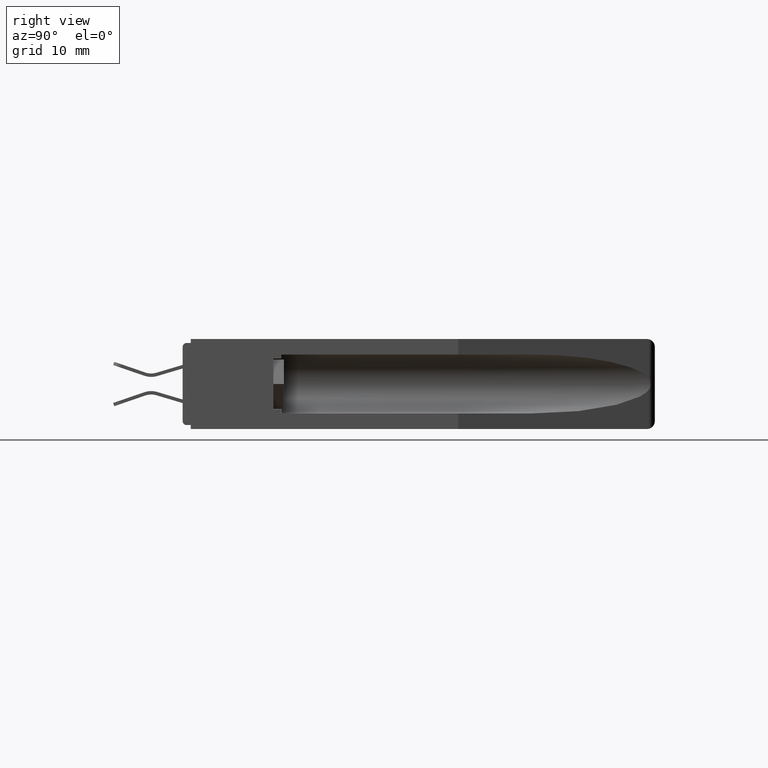
[diagram: clean part render]
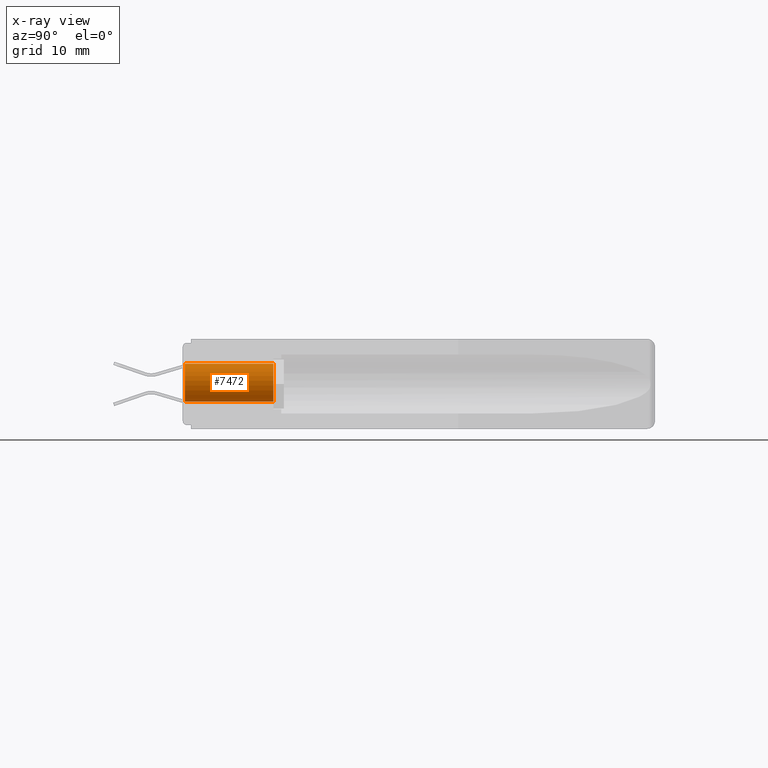
[diagram: x-ray — body ghosted, one internal face saturated and labeled with its STEP entity id]
A machine part, right view, then the same camera in x-ray: the body is ghosted and one INTERNAL B-rep face — a face not visible from any outside direction — is saturated and labeled: STEP entity #7472.
In plain terms, the highlighted cylindrical surface (edge-blend (fillet) strip) has radius 1.9685 mm, axis along (-0, 1, -0).
Its self-contained STEP definition (entity closure, byte-faithful):
#331 = CARTESIAN_POINT ( 'NONE',  ( 9.491012693391969400E-018, 0.3780000000000000600, 0.07749999999999999900 ) ) ;
#393 = DIRECTION ( 'NONE',  ( -1.009187290858911600E-031, -1.000000000000000000, -1.848892746611746400E-032 ) ) ;
#443 = EDGE_LOOP ( 'NONE', ( #2353, #1377, #5041, #13323 ) ) ;
#904 = VECTOR ( 'NONE', #3166, 39.37007874015748100 ) ;
#1207 = DIRECTION ( 'NONE',  ( -1.009187290858911600E-031, -1.000000000000000000, -1.848892746611746400E-032 ) ) ;
#1377 = ORIENTED_EDGE ( 'NONE', *, *, #5891, .T. ) ;
#2285 = AXIS2_PLACEMENT_3D ( 'NONE', #9311, #5023, #5971 ) ;
#2353 = ORIENTED_EDGE ( 'NONE', *, *, #7278, .F. ) ;
#2715 = CARTESIAN_POINT ( 'NONE',  ( 0.0000000000000000000, 0.3780000000000000600, 0.0000000000000000000 ) ) ;
#3063 = FACE_OUTER_BOUND ( 'NONE', #443, .T. ) ;
#3166 = DIRECTION ( 'NONE',  ( -1.009187290858911600E-031, -1.000000000000000000, -1.848892746611746400E-032 ) ) ;
#3226 = CARTESIAN_POINT ( 'NONE',  ( 0.0000000000000000000, 0.3780000000000000600, 0.0000000000000000000 ) ) ;
#3362 = DIRECTION ( 'NONE',  ( 0.0000000000000000000, 0.0000000000000000000, 1.000000000000000000 ) ) ;
#3690 = VECTOR ( 'NONE', #1207, 39.37007874015748100 ) ;
#4142 = CARTESIAN_POINT ( 'NONE',  ( 9.491012693392003300E-018, 0.3780000000000000600, 0.07750000000000012400 ) ) ;
#4303 = CARTESIAN_POINT ( 'NONE',  ( 0.0000000000000000000, 0.3780000000000000600, -0.07750000000000012400 ) ) ;
#4429 = LINE ( 'NONE', #4142, #904 ) ;
#5023 = DIRECTION ( 'NONE',  ( 1.009187290858911600E-031, 1.000000000000000000, 1.848892746611746400E-032 ) ) ;
#5041 = ORIENTED_EDGE ( 'NONE', *, *, #6665, .T. ) ;
#5891 = EDGE_CURVE ( 'NONE', #6100, #13391, #4429, .T. ) ;
#5971 = DIRECTION ( 'NONE',  ( 0.0000000000000000000, 0.0000000000000000000, 1.000000000000000000 ) ) ;
#6100 = VERTEX_POINT ( 'NONE', #331 ) ;
#6430 = CYLINDRICAL_SURFACE ( 'NONE', #11646, 0.07750000000000012400 ) ;
#6665 = EDGE_CURVE ( 'NONE', #13391, #9720, #6937, .T. ) ;
#6800 = DIRECTION ( 'NONE',  ( 0.0000000000000000000, 0.0000000000000000000, -1.000000000000000000 ) ) ;
#6937 = CIRCLE ( 'NONE', #2285, 0.07750000000000012400 ) ;
#7278 = EDGE_CURVE ( 'NONE', #6100, #9298, #7922, .T. ) ;
#7472 = ADVANCED_FACE ( 'NONE', ( #3063 ), #6430, .T. ) ;
#7922 = CIRCLE ( 'NONE', #11568, 0.07750000000000012400 ) ;
#8562 = CARTESIAN_POINT ( 'NONE',  ( 9.491012693391969400E-018, 0.03999999999999998000, 0.07749999999999999900 ) ) ;
#9298 = VERTEX_POINT ( 'NONE', #11914 ) ;
#9311 = CARTESIAN_POINT ( 'NONE',  ( 0.0000000000000000000, 0.03999999999999998000, 0.0000000000000000000 ) ) ;
#9720 = VERTEX_POINT ( 'NONE', #13667 ) ;
#10845 = DIRECTION ( 'NONE',  ( 1.009187290858911600E-031, 1.000000000000000000, 1.848892746611746400E-032 ) ) ;
#11568 = AXIS2_PLACEMENT_3D ( 'NONE', #2715, #10845, #3362 ) ;
#11646 = AXIS2_PLACEMENT_3D ( 'NONE', #3226, #393, #6800 ) ;
#11667 = EDGE_CURVE ( 'NONE', #9298, #9720, #12973, .T. ) ;
#11914 = CARTESIAN_POINT ( 'NONE',  ( -1.705526521551558100E-032, 0.3780000000000000600, -0.07749999999999999900 ) ) ;
#12973 = LINE ( 'NONE', #4303, #3690 ) ;
#13323 = ORIENTED_EDGE ( 'NONE', *, *, #11667, .F. ) ;
#13391 = VERTEX_POINT ( 'NONE', #8562 ) ;
#13667 = CARTESIAN_POINT ( 'NONE',  ( -1.705526521551558100E-032, 0.03999999999999998000, -0.07749999999999999900 ) ) ;